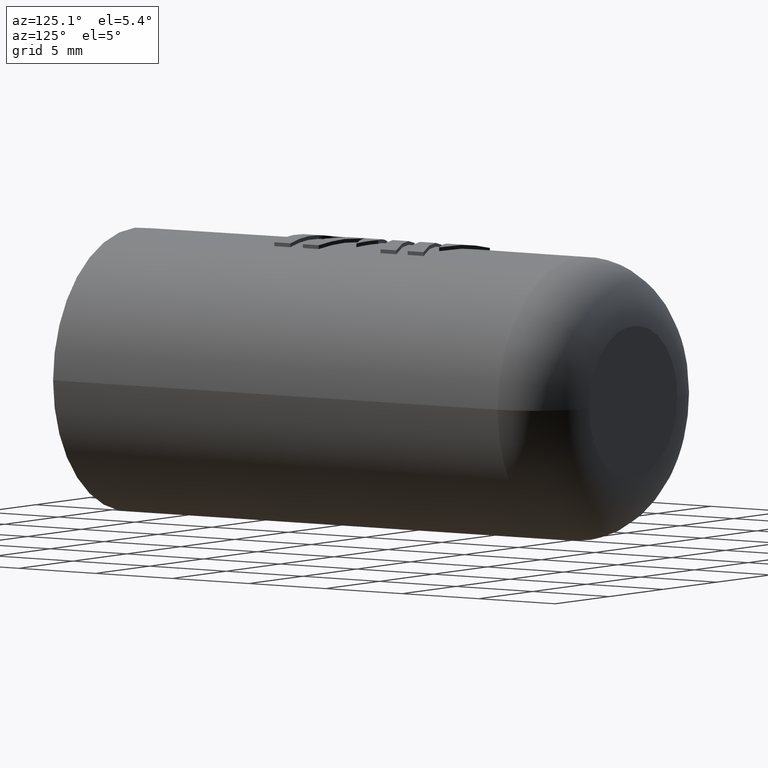
[diagram: clean part render]
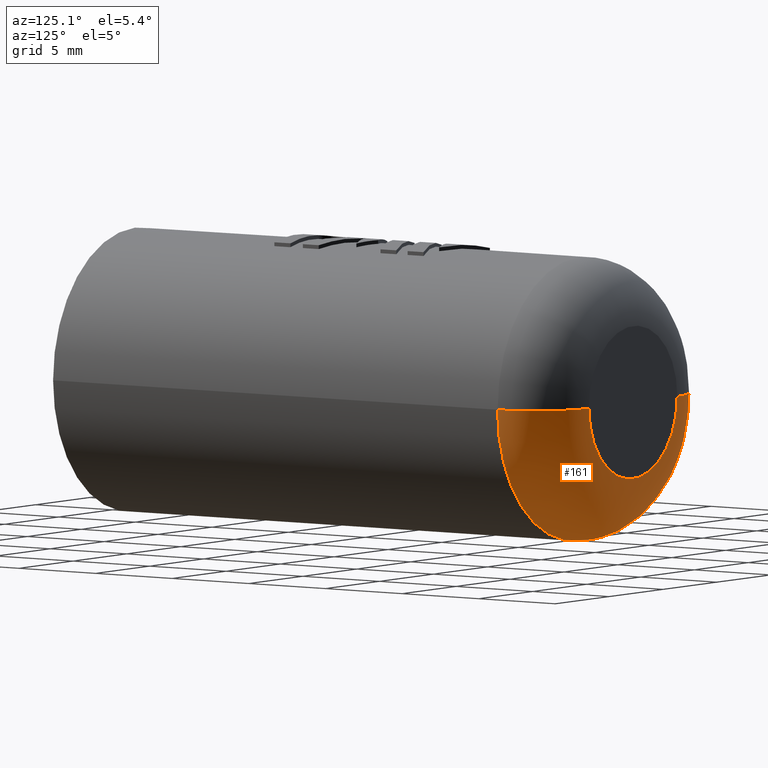
[diagram: same view with one face highlighted and labeled with its STEP entity id]
A machine part, auxiliary view. The second image highlights one B-rep face of the part: STEP entity #161.
In plain terms, the highlighted toroidal blend (fillet) surface has major radius 4.1 mm and minor (blend) radius 3.5 mm.
Its self-contained STEP definition (entity closure, byte-faithful):
#161=ADVANCED_FACE('',(#328),#329,.T.);
#328=FACE_OUTER_BOUND('',#1853,.T.);
#329=TOROIDAL_SURFACE('',#1854,4.1,3.5);
#1853=EDGE_LOOP('',(#2496,#2497,#2498,#2499));
#1854=AXIS2_PLACEMENT_3D('',#2500,#2501,#2502);
#2496=ORIENTED_EDGE('',*,*,#2560,.T.);
#2497=ORIENTED_EDGE('',*,*,#2567,.F.);
#2498=ORIENTED_EDGE('',*,*,#2562,.T.);
#2499=ORIENTED_EDGE('',*,*,#2752,.T.);
#2500=CARTESIAN_POINT('',(0.0,29.0,0.0));
#2501=DIRECTION('',(0.0,-1.0,0.0));
#2502=DIRECTION('',(1.0,0.0,-6.12323399573677E-17));
#2560=EDGE_CURVE('',#2786,#2787,#2788,.T.);
#2562=EDGE_CURVE('',#2791,#2789,#2792,.T.);
#2567=EDGE_CURVE('',#2791,#2787,#2799,.T.);
#2752=EDGE_CURVE('',#2789,#2786,#3105,.T.);
#2786=VERTEX_POINT('',#3833);
#2787=VERTEX_POINT('',#3834);
#2788=CIRCLE('',#3835,3.5);
#2789=VERTEX_POINT('',#3836);
#2791=VERTEX_POINT('',#3838);
#2792=CIRCLE('',#3839,3.5);
#2799=CIRCLE('',#3848,7.6);
#3105=CIRCLE('',#4262,4.1);
#3833=CARTESIAN_POINT('',(4.1,32.5,-2.51052593825208E-16));
#3834=CARTESIAN_POINT('',(7.6,29.0,-4.65365783675995E-16));
#3835=AXIS2_PLACEMENT_3D('',#4285,#4286,#4287);
#3836=CARTESIAN_POINT('',(-4.1,32.5,7.53157781475622E-16));
#3838=CARTESIAN_POINT('',(-7.6,29.0,-4.65365783675994E-16));
#3839=AXIS2_PLACEMENT_3D('',#4291,#4292,#4293);
#3848=AXIS2_PLACEMENT_3D('',#4302,#4303,#4304);
#4262=AXIS2_PLACEMENT_3D('',#4685,#4686,#4687);
#4285=CARTESIAN_POINT('',(4.1,29.0,-7.53157781475622E-16));
#4286=DIRECTION('',(-1.83697019872103E-16,-0.0,-1.0));
#4287=DIRECTION('',(1.0,0.0,-1.83697019872103E-16));
#4291=CARTESIAN_POINT('',(-4.1,29.0,7.53157781475622E-16));
#4292=DIRECTION('',(-1.83697019872103E-16,0.0,-1.0));
#4293=DIRECTION('',(-1.0,0.0,1.83697019872103E-16));
#4302=CARTESIAN_POINT('',(0.0,29.0,0.0));
#4303=DIRECTION('',(0.0,-1.0,0.0));
#4304=DIRECTION('',(1.0,0.0,-6.12323399573677E-17));
#4685=CARTESIAN_POINT('',(0.0,32.5,0.0));
#4686=DIRECTION('',(0.0,-1.0,0.0));
#4687=DIRECTION('',(1.0,0.0,-6.12323399573677E-17));